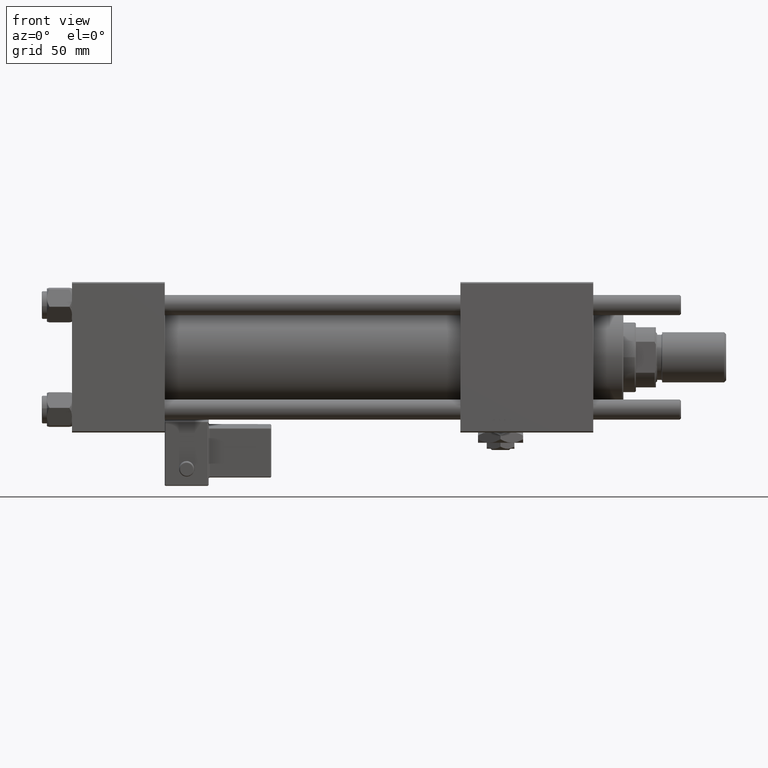
[diagram: clean part render]
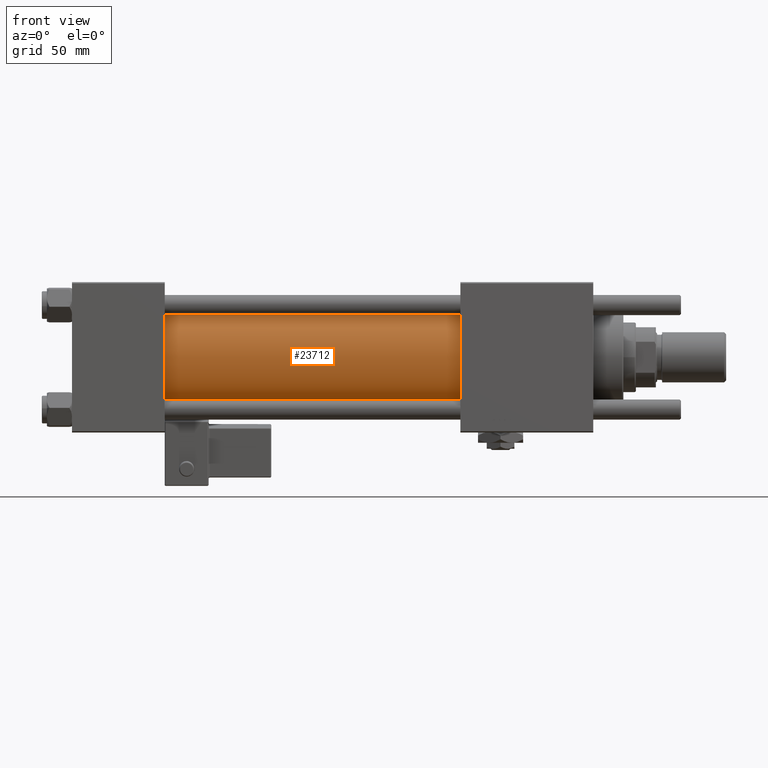
[diagram: same view with one face highlighted and labeled with its STEP entity id]
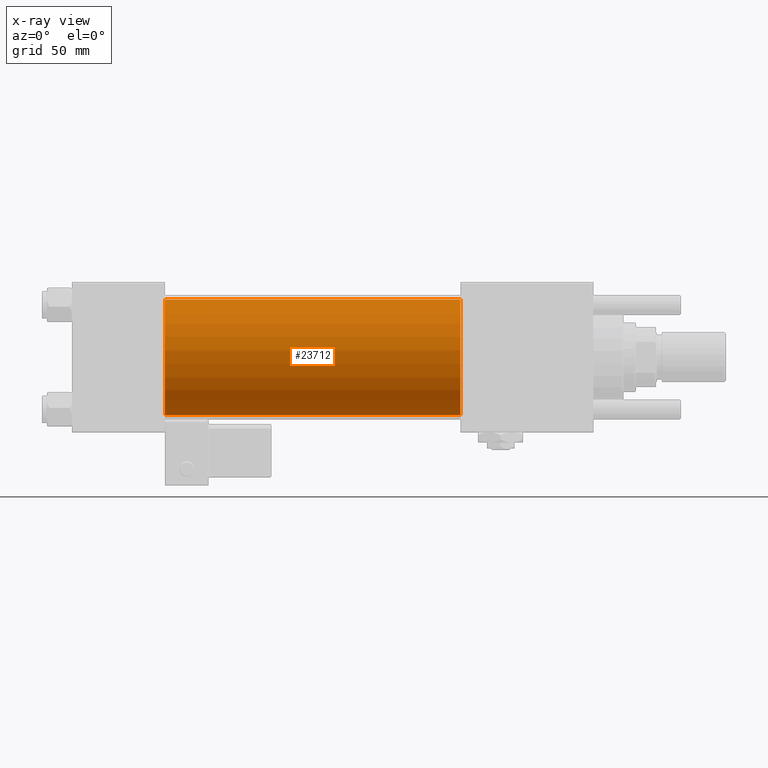
[diagram: x-ray of the same camera — body ghosted, the highlighted face saturated]
A machine part, front view. The second image highlights one B-rep face of the part: STEP entity #23712.
The next image is the same camera in x-ray: the body ghosted, the highlighted face saturated — about 0% of this face is hidden behind the body in this view.
In plain terms, the highlighted cylindrical surface (partial cylindrical patch) has radius 23 mm, axis along (-1, -0, -0).
Its self-contained STEP definition (entity closure, byte-faithful):
#2231 = DIRECTION ( 'NONE',  ( -1.000000000000000000, -0.000000000000000000, -0.000000000000000000 ) ) ;
#2523 = CARTESIAN_POINT ( 'NONE',  ( 155.0000000000000000, -2.602085213965210642E-15, 0.000000000000000000 ) ) ;
#6575 = DIRECTION ( 'NONE',  ( 0.000000000000000000, 0.000000000000000000, 1.000000000000000000 ) ) ;
#7922 = VERTEX_POINT ( 'NONE', #23977 ) ;
#11834 = CARTESIAN_POINT ( 'NONE',  ( 155.0000000000000000, -2.602085213965210642E-15, 23.00000000000000000 ) ) ;
#13833 = AXIS2_PLACEMENT_3D ( 'NONE', #16800, #2231, #6575 ) ;
#14881 = AXIS2_PLACEMENT_3D ( 'NONE', #40573, #17037, #35928 ) ;
#16770 = VECTOR ( 'NONE', #24497, 1000.000000000000000 ) ;
#16800 = CARTESIAN_POINT ( 'NONE',  ( 155.0000000000000000, -2.602085213965210642E-15, 0.000000000000000000 ) ) ;
#17037 = DIRECTION ( 'NONE',  ( 1.000000000000000000, -0.000000000000000000, 0.000000000000000000 ) ) ;
#18448 = CIRCLE ( 'NONE', #53109, 23.00000000000000000 ) ;
#20468 = LINE ( 'NONE', #49310, #44600 ) ;
#21445 = DIRECTION ( 'NONE',  ( 0.000000000000000000, 0.000000000000000000, -1.000000000000000000 ) ) ;
#23141 = EDGE_CURVE ( 'NONE', #59685, #7922, #28835, .T. ) ;
#23712 = ADVANCED_FACE ( 'NONE', ( #30127 ), #49059, .T. ) ;
#23977 = CARTESIAN_POINT ( 'NONE',  ( 37.00000000000000711, -2.602085213965210642E-15, 23.00000000000000000 ) ) ;
#24497 = DIRECTION ( 'NONE',  ( -1.000000000000000000, -0.000000000000000000, -0.000000000000000000 ) ) ;
#24812 = EDGE_CURVE ( 'NONE', #7922, #57967, #40556, .T. ) ;
#25326 = CARTESIAN_POINT ( 'NONE',  ( 37.00000000000000711, 2.146024240737016609E-16, -23.00000000000000000 ) ) ;
#26287 = EDGE_CURVE ( 'NONE', #35179, #57967, #20468, .T. ) ;
#26392 = CARTESIAN_POINT ( 'NONE',  ( 155.0000000000000000, 2.146024240737016609E-16, -23.00000000000000000 ) ) ;
#28835 = LINE ( 'NONE', #38118, #16770 ) ;
#30127 = FACE_OUTER_BOUND ( 'NONE', #55611, .T. ) ;
#31305 = ORIENTED_EDGE ( 'NONE', *, *, #24812, .T. ) ;
#35179 = VERTEX_POINT ( 'NONE', #26392 ) ;
#35928 = DIRECTION ( 'NONE',  ( 0.000000000000000000, 0.000000000000000000, 1.000000000000000000 ) ) ;
#38118 = CARTESIAN_POINT ( 'NONE',  ( 155.0000000000000000, -2.602085213965210642E-15, 23.00000000000000000 ) ) ;
#39358 = DIRECTION ( 'NONE',  ( -1.000000000000000000, -0.000000000000000000, -0.000000000000000000 ) ) ;
#40556 = CIRCLE ( 'NONE', #14881, 23.00000000000000000 ) ;
#40573 = CARTESIAN_POINT ( 'NONE',  ( 37.00000000000000711, -2.602085213965210642E-15, 0.000000000000000000 ) ) ;
#41851 = EDGE_CURVE ( 'NONE', #59685, #35179, #18448, .T. ) ;
#44600 = VECTOR ( 'NONE', #39358, 1000.000000000000000 ) ;
#49059 = CYLINDRICAL_SURFACE ( 'NONE', #13833, 23.00000000000000000 ) ;
#49310 = CARTESIAN_POINT ( 'NONE',  ( 155.0000000000000000, 2.146024240737016609E-16, -23.00000000000000000 ) ) ;
#51263 = ORIENTED_EDGE ( 'NONE', *, *, #26287, .F. ) ;
#53109 = AXIS2_PLACEMENT_3D ( 'NONE', #2523, #53708, #21445 ) ;
#53708 = DIRECTION ( 'NONE',  ( 1.000000000000000000, 0.000000000000000000, 0.000000000000000000 ) ) ;
#55611 = EDGE_LOOP ( 'NONE', ( #51263, #58113, #56218, #31305 ) ) ;
#56218 = ORIENTED_EDGE ( 'NONE', *, *, #23141, .T. ) ;
#57967 = VERTEX_POINT ( 'NONE', #25326 ) ;
#58113 = ORIENTED_EDGE ( 'NONE', *, *, #41851, .F. ) ;
#59685 = VERTEX_POINT ( 'NONE', #11834 ) ;